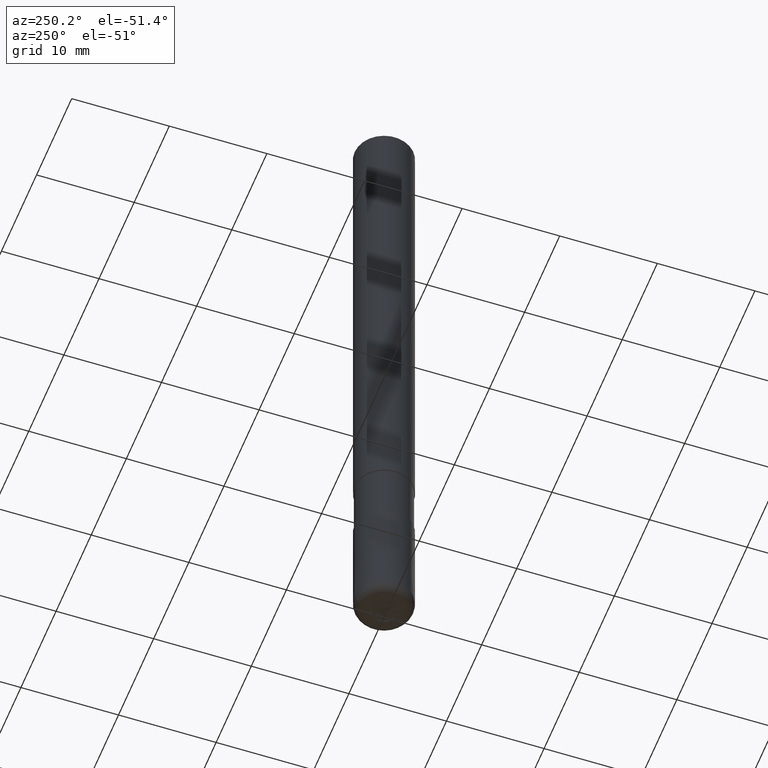
[diagram: clean part render]
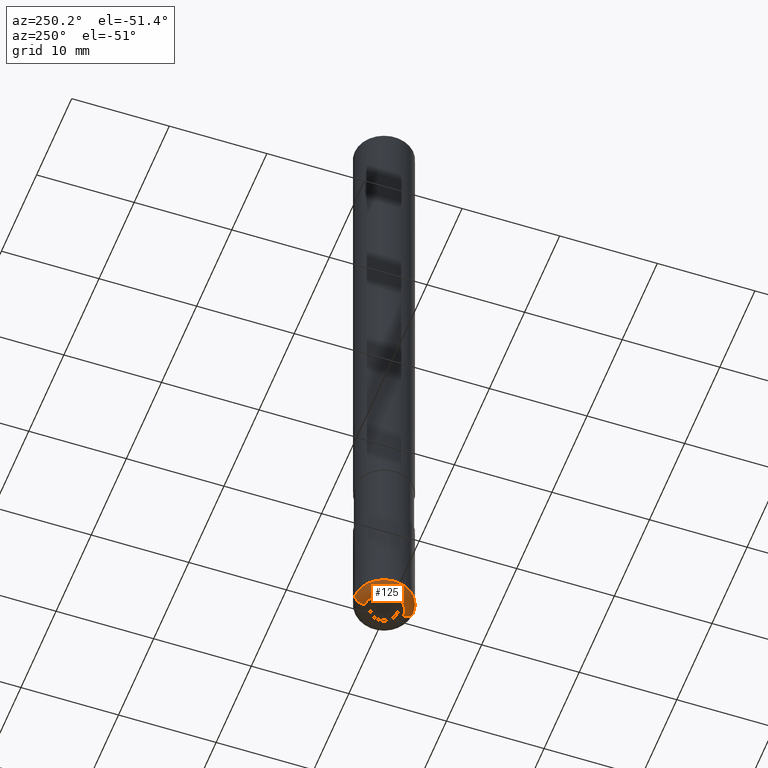
[diagram: same view with one face highlighted and labeled with its STEP entity id]
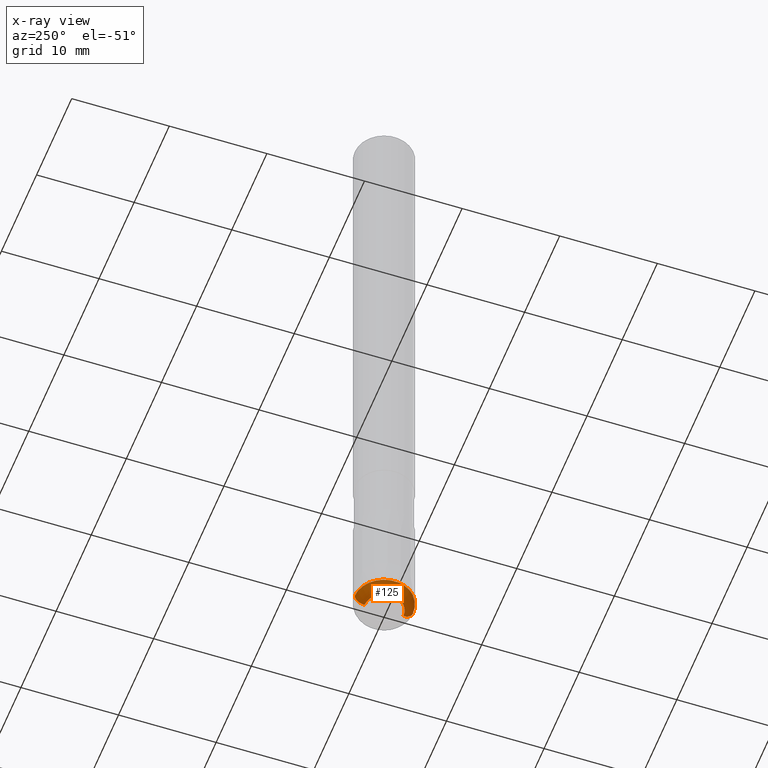
[diagram: x-ray of the same camera — body ghosted, the highlighted face saturated]
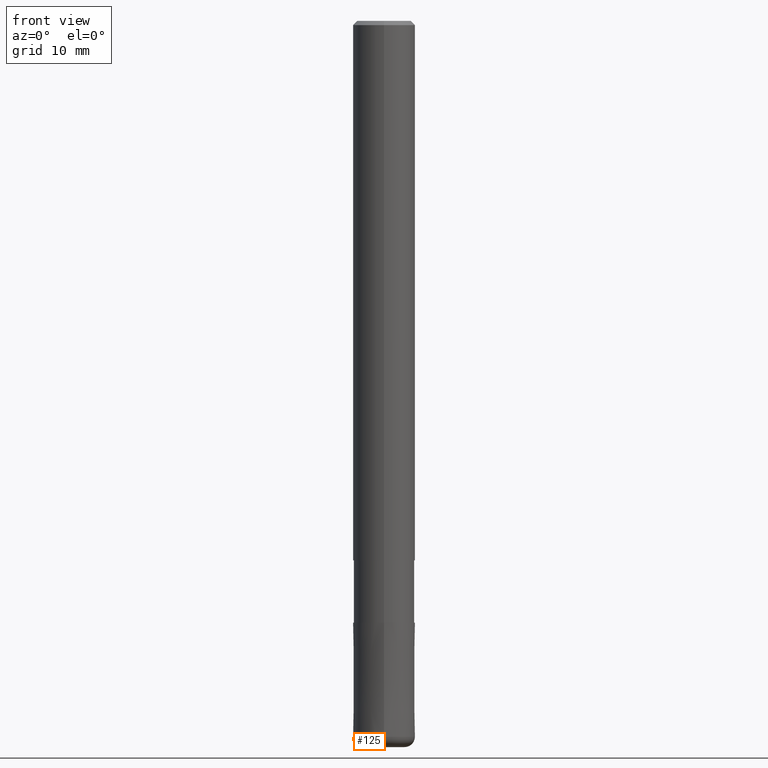
[diagram: same view with one face highlighted and labeled with its STEP entity id]
A machine part, auxiliary view. The second image highlights one B-rep face of the part: STEP entity #125.
The next image is the same camera in x-ray: the body ghosted, the highlighted face saturated — about 0% of this face is hidden behind the body in this view.
A second angle (front view) of the same face is appended — the face is thin or edge-on in the first view.
In plain terms, the highlighted toroidal blend (fillet) surface has major radius 2 mm and minor (blend) radius 1 mm.
Its self-contained STEP definition (entity closure, byte-faithful):
#119=EDGE_CURVE('',#123,#187,#307,.T.);
#123=VERTEX_POINT('',#312);
#125=ADVANCED_FACE('',(#314),#315,.T.);
#133=EDGE_CURVE('',#123,#225,#324,.T.);
#187=VERTEX_POINT('',#387);
#191=EDGE_CURVE('',#201,#225,#391,.T.);
#201=VERTEX_POINT('',#405);
#225=VERTEX_POINT('',#430);
#229=EDGE_CURVE('',#187,#201,#435,.T.);
#307=CIRCLE('',#511,1.0);
#312=CARTESIAN_POINT('',(3.67381906146713E-016,-3.0,-69.0));
#314=FACE_OUTER_BOUND('',#518,.T.);
#315=TOROIDAL_SURFACE('',#519,2.0,1.0);
#324=CIRCLE('',#531,3.0);
#387=CARTESIAN_POINT('',(2.44921270764475E-016,-2.0,-70.0));
#391=CIRCLE('',#618,1.0);
#405=CARTESIAN_POINT('',(0.0,2.0,-70.0));
#430=CARTESIAN_POINT('',(0.0,3.0,-69.0));
#435=CIRCLE('',#671,2.0);
#511=AXIS2_PLACEMENT_3D('',#755,#756,#757);
#518=EDGE_LOOP('',(#767,#768,#769,#770));
#519=AXIS2_PLACEMENT_3D('',#771,#772,#773);
#531=AXIS2_PLACEMENT_3D('',#788,#789,#790);
#618=AXIS2_PLACEMENT_3D('',#874,#875,#876);
#671=AXIS2_PLACEMENT_3D('',#929,#930,#931);
#755=CARTESIAN_POINT('',(2.44921270764475E-016,-2.0,-69.0));
#756=DIRECTION('',(1.0,1.22460635382238E-016,0.0));
#757=DIRECTION('',(1.22460635382238E-016,-1.0,-0.0));
#767=ORIENTED_EDGE('',*,*,#119,.F.);
#768=ORIENTED_EDGE('',*,*,#133,.T.);
#769=ORIENTED_EDGE('',*,*,#191,.F.);
#770=ORIENTED_EDGE('',*,*,#229,.F.);
#771=CARTESIAN_POINT('',(0.0,0.0,-69.0));
#772=DIRECTION('',(0.0,0.0,-1.0));
#773=DIRECTION('',(0.0,-1.0,0.0));
#788=CARTESIAN_POINT('',(0.0,0.0,-69.0));
#789=DIRECTION('',(0.0,0.0,-1.0));
#790=DIRECTION('',(0.0,1.0,0.0));
#874=CARTESIAN_POINT('',(-2.44921270764475E-016,2.0,-69.0));
#875=DIRECTION('',(1.0,1.22460635382238E-016,0.0));
#876=DIRECTION('',(-1.22460635382238E-016,1.0,0.0));
#929=CARTESIAN_POINT('',(0.0,0.0,-70.0));
#930=DIRECTION('',(0.0,0.0,-1.0));
#931=DIRECTION('',(0.0,1.0,0.0));